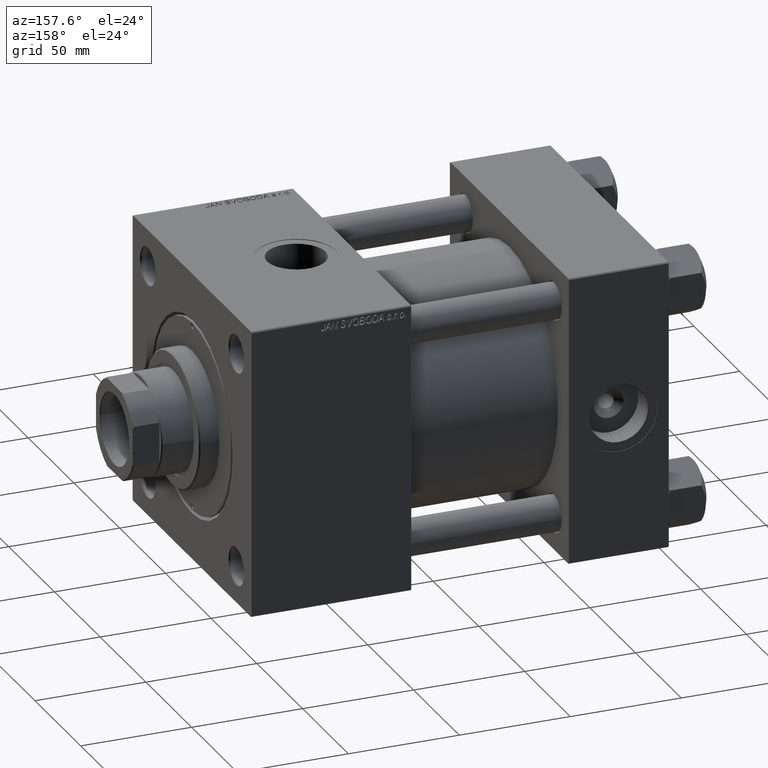
[diagram: clean part render]
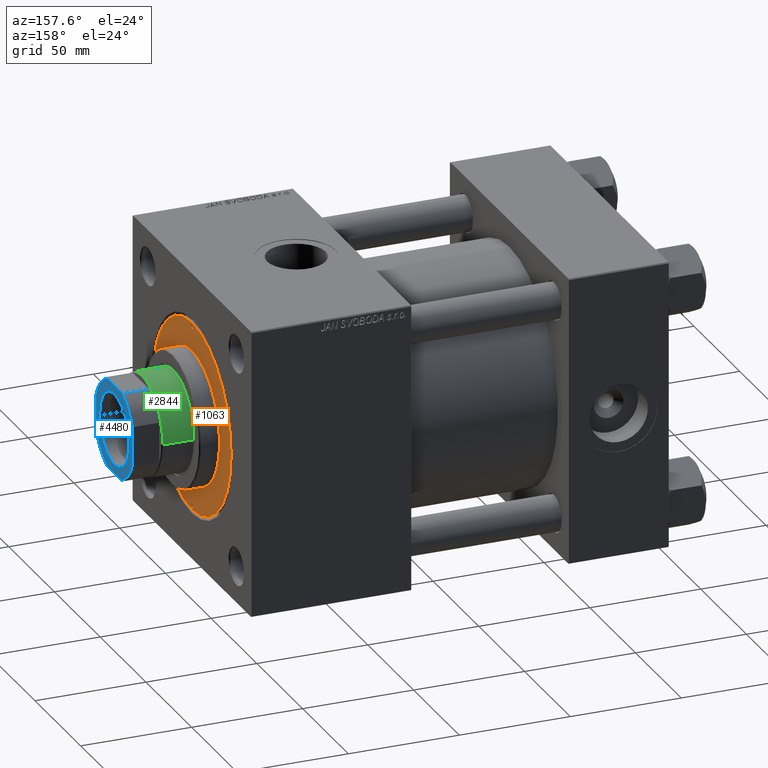
[diagram: same view with three faces highlighted in distinct colors, each labeled with its STEP entity id]
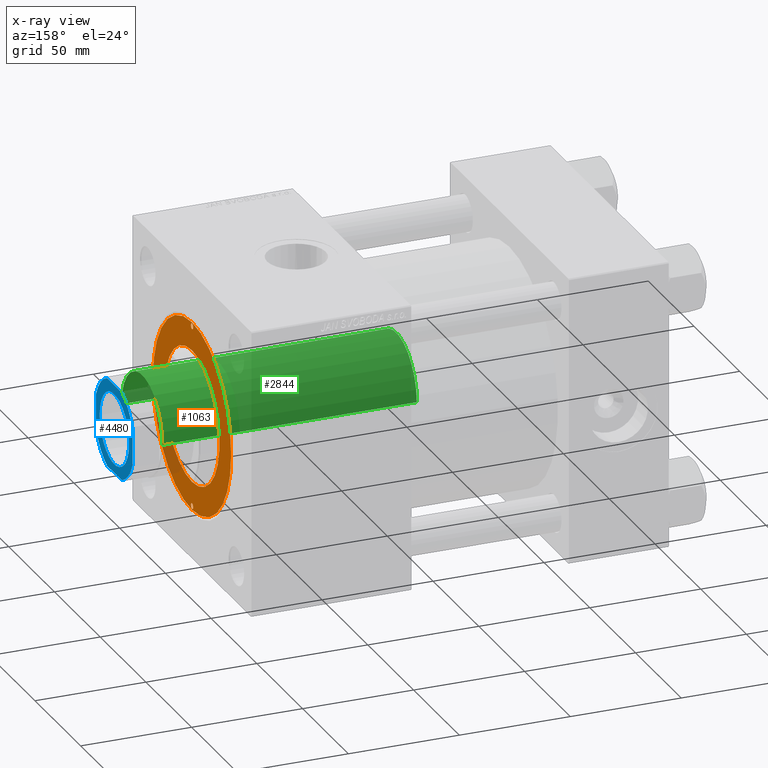
[diagram: x-ray of the same camera — body ghosted, the three highlighted faces saturated]
A machine part, auxiliary view with three faces highlighted in distinct colors.
The next image is the same camera in x-ray (body ghosted, the three faces saturated) — at least one of them is partly hidden behind the body in this view.
Their STEP definitions:

[orange] entity #1063 — the highlighted planar face has unit normal (1, 0, 0).
#275 = AXIS2_PLACEMENT_3D ( 'NONE', #12005, #31513, #8141 ) ;
#486 = AXIS2_PLACEMENT_3D ( 'NONE', #19114, #34778, #19885 ) ;
#1063 = ADVANCED_FACE ( 'NONE', ( #28494, #46998, #23892, #7962 ), #31852, .T. ) ;
#1110 = CARTESIAN_POINT ( 'NONE',  ( -41.00000000000000000, 0.000000000000000000, 28.69999999999999929 ) ) ;
#1479 = DIRECTION ( 'NONE',  ( 0.000000000000000000, 0.000000000000000000, 1.000000000000000000 ) ) ;
#1574 = ORIENTED_EDGE ( 'NONE', *, *, #43233, .F. ) ;
#2138 = EDGE_LOOP ( 'NONE', ( #1574, #11140 ) ) ;
#2294 = DIRECTION ( 'NONE',  ( 0.000000000000000000, 0.000000000000000000, 1.000000000000000000 ) ) ;
#2833 = ORIENTED_EDGE ( 'NONE', *, *, #49996, .F. ) ;
#2865 = DIRECTION ( 'NONE',  ( 1.000000000000000000, 0.000000000000000000, 0.000000000000000000 ) ) ;
#3523 = CARTESIAN_POINT ( 'NONE',  ( 0.000000000000000000, 0.000000000000000000, 28.69999999999999929 ) ) ;
#3709 = VERTEX_POINT ( 'NONE', #43168 ) ;
#3901 = CIRCLE ( 'NONE', #43242, 1.249999999999994227 ) ;
#3927 = EDGE_LOOP ( 'NONE', ( #22113, #2833 ) ) ;
#4465 = DIRECTION ( 'NONE',  ( 0.000000000000000000, 0.000000000000000000, 1.000000000000000000 ) ) ;
#4846 = DIRECTION ( 'NONE',  ( 1.000000000000000000, 0.000000000000000000, 0.000000000000000000 ) ) ;
#5575 = EDGE_CURVE ( 'NONE', #14776, #43207, #12023, .T. ) ;
#5816 = CARTESIAN_POINT ( 'NONE',  ( 42.75000000000000000, 5.235365066354935472E-15, 28.69999999999999929 ) ) ;
#7962 = FACE_OUTER_BOUND ( 'NONE', #11055, .T. ) ;
#8141 = DIRECTION ( 'NONE',  ( 1.000000000000000000, 0.000000000000000000, 0.000000000000000000 ) ) ;
#8244 = CARTESIAN_POINT ( 'NONE',  ( -39.75000000000000711, 0.000000000000000000, 28.69999999999999929 ) ) ;
#9078 = CARTESIAN_POINT ( 'NONE',  ( 0.000000000000000000, 0.000000000000000000, 28.69999999999999929 ) ) ;
#10382 = ORIENTED_EDGE ( 'NONE', *, *, #26746, .F. ) ;
#10872 = EDGE_CURVE ( 'NONE', #24531, #3709, #18749, .T. ) ;
#11055 = EDGE_LOOP ( 'NONE', ( #48394, #12604 ) ) ;
#11140 = ORIENTED_EDGE ( 'NONE', *, *, #39235, .F. ) ;
#12005 = CARTESIAN_POINT ( 'NONE',  ( 41.00000000000000000, 0.000000000000000000, 28.69999999999999929 ) ) ;
#12023 = CIRCLE ( 'NONE', #39072, 42.75000000000000000 ) ;
#12595 = DIRECTION ( 'NONE',  ( 0.000000000000000000, 0.000000000000000000, 1.000000000000000000 ) ) ;
#12604 = ORIENTED_EDGE ( 'NONE', *, *, #48836, .T. ) ;
#14530 = CARTESIAN_POINT ( 'NONE',  ( 42.24999999999999289, 0.000000000000000000, 28.69999999999999929 ) ) ;
#14776 = VERTEX_POINT ( 'NONE', #27757 ) ;
#15634 = ORIENTED_EDGE ( 'NONE', *, *, #10872, .F. ) ;
#17088 = AXIS2_PLACEMENT_3D ( 'NONE', #17152, #1479, #4846 ) ;
#17152 = CARTESIAN_POINT ( 'NONE',  ( 0.000000000000000000, 0.000000000000000000, 28.69999999999999929 ) ) ;
#17754 = CARTESIAN_POINT ( 'NONE',  ( -30.00000000000000000, 0.000000000000000000, 28.69999999999999929 ) ) ;
#18749 = CIRCLE ( 'NONE', #47456, 1.249999999999994227 ) ;
#19114 = CARTESIAN_POINT ( 'NONE',  ( -41.00000000000000000, 0.000000000000000000, 28.69999999999999929 ) ) ;
#19352 = EDGE_LOOP ( 'NONE', ( #15634, #10382 ) ) ;
#19525 = AXIS2_PLACEMENT_3D ( 'NONE', #3523, #40740, #28414 ) ;
#19885 = DIRECTION ( 'NONE',  ( 1.000000000000000000, 0.000000000000000000, 0.000000000000000000 ) ) ;
#22113 = ORIENTED_EDGE ( 'NONE', *, *, #35329, .F. ) ;
#23642 = DIRECTION ( 'NONE',  ( 1.000000000000000000, 0.000000000000000000, -0.000000000000000000 ) ) ;
#23892 = FACE_BOUND ( 'NONE', #3927, .T. ) ;
#24490 = VERTEX_POINT ( 'NONE', #49211 ) ;
#24531 = VERTEX_POINT ( 'NONE', #14530 ) ;
#26102 = CIRCLE ( 'NONE', #17088, 30.00000000000000000 ) ;
#26746 = EDGE_CURVE ( 'NONE', #3709, #24531, #49510, .T. ) ;
#27757 = CARTESIAN_POINT ( 'NONE',  ( -42.75000000000000000, 0.000000000000000000, 28.69999999999999929 ) ) ;
#28414 = DIRECTION ( 'NONE',  ( 1.000000000000000000, 0.000000000000000000, 0.000000000000000000 ) ) ;
#28494 = FACE_BOUND ( 'NONE', #2138, .T. ) ;
#29049 = CIRCLE ( 'NONE', #35613, 30.00000000000000000 ) ;
#29769 = CARTESIAN_POINT ( 'NONE',  ( 0.000000000000000000, 0.000000000000000000, 28.69999999999999929 ) ) ;
#31298 = VERTEX_POINT ( 'NONE', #40555 ) ;
#31513 = DIRECTION ( 'NONE',  ( 0.000000000000000000, 0.000000000000000000, 1.000000000000000000 ) ) ;
#31852 = PLANE ( 'NONE',  #33167 ) ;
#33167 = AXIS2_PLACEMENT_3D ( 'NONE', #44169, #12595, #23642 ) ;
#33312 = VERTEX_POINT ( 'NONE', #17754 ) ;
#34199 = DIRECTION ( 'NONE',  ( 0.000000000000000000, 0.000000000000000000, 1.000000000000000000 ) ) ;
#34778 = DIRECTION ( 'NONE',  ( 0.000000000000000000, 0.000000000000000000, 1.000000000000000000 ) ) ;
#35088 = CIRCLE ( 'NONE', #19525, 42.75000000000000000 ) ;
#35196 = VERTEX_POINT ( 'NONE', #8244 ) ;
#35329 = EDGE_CURVE ( 'NONE', #33312, #31298, #29049, .T. ) ;
#35613 = AXIS2_PLACEMENT_3D ( 'NONE', #29769, #2294, #49291 ) ;
#36052 = DIRECTION ( 'NONE',  ( 1.000000000000000000, 0.000000000000000000, 0.000000000000000000 ) ) ;
#39072 = AXIS2_PLACEMENT_3D ( 'NONE', #9078, #40651, #36052 ) ;
#39235 = EDGE_CURVE ( 'NONE', #24490, #35196, #47230, .T. ) ;
#40555 = CARTESIAN_POINT ( 'NONE',  ( 30.00000000000000000, 3.673940397442059178E-15, 28.69999999999999929 ) ) ;
#40651 = DIRECTION ( 'NONE',  ( 0.000000000000000000, 0.000000000000000000, 1.000000000000000000 ) ) ;
#40740 = DIRECTION ( 'NONE',  ( 0.000000000000000000, 0.000000000000000000, 1.000000000000000000 ) ) ;
#43168 = CARTESIAN_POINT ( 'NONE',  ( 39.75000000000000000, 1.530808498934193050E-16, 28.69999999999999929 ) ) ;
#43207 = VERTEX_POINT ( 'NONE', #5816 ) ;
#43233 = EDGE_CURVE ( 'NONE', #35196, #24490, #3901, .T. ) ;
#43242 = AXIS2_PLACEMENT_3D ( 'NONE', #1110, #4465, #47344 ) ;
#44169 = CARTESIAN_POINT ( 'NONE',  ( 0.000000000000000000, 0.000000000000000000, 28.69999999999999929 ) ) ;
#46998 = FACE_BOUND ( 'NONE', #19352, .T. ) ;
#47230 = CIRCLE ( 'NONE', #486, 1.249999999999994227 ) ;
#47344 = DIRECTION ( 'NONE',  ( 1.000000000000000000, 0.000000000000000000, 0.000000000000000000 ) ) ;
#47456 = AXIS2_PLACEMENT_3D ( 'NONE', #50640, #34199, #2865 ) ;
#48394 = ORIENTED_EDGE ( 'NONE', *, *, #5575, .T. ) ;
#48836 = EDGE_CURVE ( 'NONE', #43207, #14776, #35088, .T. ) ;
#49211 = CARTESIAN_POINT ( 'NONE',  ( -42.25000000000000000, 1.530808498934193050E-16, 28.69999999999999929 ) ) ;
#49291 = DIRECTION ( 'NONE',  ( 1.000000000000000000, 0.000000000000000000, 0.000000000000000000 ) ) ;
#49510 = CIRCLE ( 'NONE', #275, 1.249999999999994227 ) ;
#49996 = EDGE_CURVE ( 'NONE', #31298, #33312, #26102, .T. ) ;
#50640 = CARTESIAN_POINT ( 'NONE',  ( 41.00000000000000000, 0.000000000000000000, 28.69999999999999929 ) ) ;

[blue] entity #4480 — the highlighted planar face has unit normal (1, 0, 0).
#40 = DIRECTION ( 'NONE',  ( 1.000000000000000000, 0.000000000000000000, 0.000000000000000000 ) ) ;
#1657 = PLANE ( 'NONE',  #45574 ) ;
#2050 = CARTESIAN_POINT ( 'NONE',  ( -20.00000000000000355, 20.00000000000000000, 178.0000000000000284 ) ) ;
#2095 = VECTOR ( 'NONE', #27193, 1000.000000000000000 ) ;
#3887 = CARTESIAN_POINT ( 'NONE',  ( 0.000000000000000000, 0.000000000000000000, 178.0000000000000284 ) ) ;
#3936 = VECTOR ( 'NONE', #28221, 1000.000000000000000 ) ;
#4480 = ADVANCED_FACE ( 'NONE', ( #25039, #44306 ), #1657, .T. ) ;
#4760 = ORIENTED_EDGE ( 'NONE', *, *, #38626, .T. ) ;
#4894 = ORIENTED_EDGE ( 'NONE', *, *, #17705, .T. ) ;
#5862 = VERTEX_POINT ( 'NONE', #9793 ) ;
#5957 = CARTESIAN_POINT ( 'NONE',  ( 0.000000000000000000, 0.000000000000000000, 178.0000000000000284 ) ) ;
#7340 = AXIS2_PLACEMENT_3D ( 'NONE', #5957, #18029, #33695 ) ;
#7610 = EDGE_CURVE ( 'NONE', #29612, #5862, #28272, .T. ) ;
#8500 = CARTESIAN_POINT ( 'NONE',  ( 0.000000000000000000, 0.000000000000000000, 178.0000000000000284 ) ) ;
#8812 = CARTESIAN_POINT ( 'NONE',  ( 20.00000000000000000, 7.889866919029785208, 178.0000000000000284 ) ) ;
#9745 = CARTESIAN_POINT ( 'NONE',  ( 19.99999999999999645, 20.00000000000000000, 178.0000000000000284 ) ) ;
#9793 = CARTESIAN_POINT ( 'NONE',  ( -20.00000000000000000, -7.889866919029748793, 178.0000000000000284 ) ) ;
#9897 = DIRECTION ( 'NONE',  ( 1.000000000000000000, 0.000000000000000000, 0.000000000000000000 ) ) ;
#10201 = VERTEX_POINT ( 'NONE', #13026 ) ;
#10950 = VECTOR ( 'NONE', #37743, 1000.000000000000000 ) ;
#10995 = CARTESIAN_POINT ( 'NONE',  ( -7.889866919029745240, -20.00000000000000000, 178.0000000000000284 ) ) ;
#13026 = CARTESIAN_POINT ( 'NONE',  ( 16.05000000000000782, 0.000000000000000000, 178.0000000000000284 ) ) ;
#14941 = ORIENTED_EDGE ( 'NONE', *, *, #21303, .T. ) ;
#15419 = ORIENTED_EDGE ( 'NONE', *, *, #49764, .T. ) ;
#16488 = VERTEX_POINT ( 'NONE', #26853 ) ;
#17313 = ORIENTED_EDGE ( 'NONE', *, *, #48491, .T. ) ;
#17326 = VERTEX_POINT ( 'NONE', #34895 ) ;
#17705 = EDGE_CURVE ( 'NONE', #16488, #10201, #37698, .T. ) ;
#18029 = DIRECTION ( 'NONE',  ( 0.000000000000000000, -0.000000000000000000, -1.000000000000000000 ) ) ;
#18674 = VERTEX_POINT ( 'NONE', #34325 ) ;
#19558 = DIRECTION ( 'NONE',  ( -0.000000000000000000, 0.000000000000000000, 1.000000000000000000 ) ) ;
#19565 = DIRECTION ( 'NONE',  ( 1.000000000000000000, 0.000000000000000000, 0.000000000000000000 ) ) ;
#19585 = DIRECTION ( 'NONE',  ( -0.000000000000000000, 0.000000000000000000, 1.000000000000000000 ) ) ;
#20139 = CARTESIAN_POINT ( 'NONE',  ( 0.000000000000000000, 0.000000000000000000, 178.0000000000000284 ) ) ;
#20403 = DIRECTION ( 'NONE',  ( 1.000000000000000000, 0.000000000000000000, 0.000000000000000000 ) ) ;
#20412 = AXIS2_PLACEMENT_3D ( 'NONE', #3887, #35473, #19565 ) ;
#20596 = CARTESIAN_POINT ( 'NONE',  ( -20.00000000000000355, 20.00000000000000000, 178.0000000000000284 ) ) ;
#21045 = LINE ( 'NONE', #9745, #3936 ) ;
#21303 = EDGE_CURVE ( 'NONE', #10201, #16488, #50130, .T. ) ;
#21627 = VERTEX_POINT ( 'NONE', #30560 ) ;
#21655 = AXIS2_PLACEMENT_3D ( 'NONE', #31748, #35597, #43564 ) ;
#23431 = CARTESIAN_POINT ( 'NONE',  ( 0.000000000000000000, 0.000000000000000000, 178.0000000000000284 ) ) ;
#24109 = LINE ( 'NONE', #43630, #2095 ) ;
#25039 = FACE_BOUND ( 'NONE', #38710, .T. ) ;
#25210 = VECTOR ( 'NONE', #48049, 1000.000000000000000 ) ;
#25306 = CIRCLE ( 'NONE', #20412, 21.49999999999996447 ) ;
#26853 = CARTESIAN_POINT ( 'NONE',  ( -16.05000000000000782, 1.965558112631502993E-15, 178.0000000000000284 ) ) ;
#27193 = DIRECTION ( 'NONE',  ( 1.000000000000000000, 0.000000000000000000, 0.000000000000000000 ) ) ;
#27984 = AXIS2_PLACEMENT_3D ( 'NONE', #20139, #50706, #20403 ) ;
#28221 = DIRECTION ( 'NONE',  ( -1.734723475976807094E-16, 1.000000000000000000, -0.000000000000000000 ) ) ;
#28272 = LINE ( 'NONE', #20596, #25210 ) ;
#28794 = VERTEX_POINT ( 'NONE', #34385 ) ;
#29392 = DIRECTION ( 'NONE',  ( -0.000000000000000000, 0.000000000000000000, 1.000000000000000000 ) ) ;
#29539 = EDGE_CURVE ( 'NONE', #18674, #17326, #45198, .T. ) ;
#29612 = VERTEX_POINT ( 'NONE', #39516 ) ;
#30092 = EDGE_CURVE ( 'NONE', #17326, #29612, #36403, .T. ) ;
#30560 = CARTESIAN_POINT ( 'NONE',  ( 20.00000000000000000, -7.889866919029643100, 178.0000000000000284 ) ) ;
#30948 = ORIENTED_EDGE ( 'NONE', *, *, #7610, .T. ) ;
#31748 = CARTESIAN_POINT ( 'NONE',  ( 0.000000000000000000, 0.000000000000000000, 178.0000000000000284 ) ) ;
#33695 = DIRECTION ( 'NONE',  ( 1.000000000000000000, 0.000000000000000000, 0.000000000000000000 ) ) ;
#34325 = CARTESIAN_POINT ( 'NONE',  ( 7.889866919029781656, 20.00000000000000000, 178.0000000000000284 ) ) ;
#34385 = CARTESIAN_POINT ( 'NONE',  ( 7.889866919029648429, -20.00000000000000000, 178.0000000000000284 ) ) ;
#34895 = CARTESIAN_POINT ( 'NONE',  ( -7.889866919029755898, 20.00000000000000000, 178.0000000000000284 ) ) ;
#35112 = EDGE_CURVE ( 'NONE', #45467, #18674, #39720, .T. ) ;
#35264 = ORIENTED_EDGE ( 'NONE', *, *, #39558, .T. ) ;
#35473 = DIRECTION ( 'NONE',  ( -0.000000000000000000, 0.000000000000000000, 1.000000000000000000 ) ) ;
#35597 = DIRECTION ( 'NONE',  ( -0.000000000000000000, 0.000000000000000000, 1.000000000000000000 ) ) ;
#36351 = CARTESIAN_POINT ( 'NONE',  ( 0.000000000000000000, 0.000000000000000000, 178.0000000000000284 ) ) ;
#36403 = CIRCLE ( 'NONE', #21655, 21.50000000000000000 ) ;
#36430 = AXIS2_PLACEMENT_3D ( 'NONE', #8500, #19558, #38811 ) ;
#37085 = ORIENTED_EDGE ( 'NONE', *, *, #30092, .T. ) ;
#37404 = CIRCLE ( 'NONE', #48046, 21.50000000000000000 ) ;
#37698 = CIRCLE ( 'NONE', #7340, 16.05000000000000782 ) ;
#37743 = DIRECTION ( 'NONE',  ( -1.000000000000000000, -0.000000000000000000, -0.000000000000000000 ) ) ;
#38626 = EDGE_CURVE ( 'NONE', #42190, #28794, #24109, .T. ) ;
#38710 = EDGE_LOOP ( 'NONE', ( #14941, #4894 ) ) ;
#38811 = DIRECTION ( 'NONE',  ( 1.000000000000000000, 0.000000000000000000, 0.000000000000000000 ) ) ;
#39516 = CARTESIAN_POINT ( 'NONE',  ( -20.00000000000000000, 7.889866919029752346, 178.0000000000000284 ) ) ;
#39558 = EDGE_CURVE ( 'NONE', #5862, #42190, #37404, .T. ) ;
#39720 = CIRCLE ( 'NONE', #36430, 21.50000000000001066 ) ;
#42190 = VERTEX_POINT ( 'NONE', #10995 ) ;
#43564 = DIRECTION ( 'NONE',  ( 1.000000000000000000, 0.000000000000000000, 0.000000000000000000 ) ) ;
#43630 = CARTESIAN_POINT ( 'NONE',  ( -19.99999999999999645, -20.00000000000000000, 178.0000000000000284 ) ) ;
#44306 = FACE_OUTER_BOUND ( 'NONE', #48338, .T. ) ;
#44927 = ORIENTED_EDGE ( 'NONE', *, *, #35112, .T. ) ;
#45198 = LINE ( 'NONE', #2050, #10950 ) ;
#45467 = VERTEX_POINT ( 'NONE', #8812 ) ;
#45574 = AXIS2_PLACEMENT_3D ( 'NONE', #36351, #29392, #9897 ) ;
#46091 = ORIENTED_EDGE ( 'NONE', *, *, #29539, .T. ) ;
#48046 = AXIS2_PLACEMENT_3D ( 'NONE', #23431, #19585, #40 ) ;
#48049 = DIRECTION ( 'NONE',  ( 1.734723475976807094E-16, -1.000000000000000000, 0.000000000000000000 ) ) ;
#48338 = EDGE_LOOP ( 'NONE', ( #17313, #44927, #46091, #37085, #30948, #35264, #4760, #15419 ) ) ;
#48491 = EDGE_CURVE ( 'NONE', #21627, #45467, #21045, .T. ) ;
#49764 = EDGE_CURVE ( 'NONE', #28794, #21627, #25306, .T. ) ;
#50130 = CIRCLE ( 'NONE', #27984, 16.05000000000000782 ) ;
#50706 = DIRECTION ( 'NONE',  ( 0.000000000000000000, -0.000000000000000000, -1.000000000000000000 ) ) ;

[green] entity #2844 — the highlighted cylindrical surface (partial cylindrical patch) has radius 22.5 mm, axis along (-1, 0, 0).
#250 = FACE_OUTER_BOUND ( 'NONE', #47010, .T. ) ;
#949 = CARTESIAN_POINT ( 'NONE',  ( 0.000000000000000000, 0.000000000000000000, 51.00000000000000000 ) ) ;
#1643 = LINE ( 'NONE', #40440, #39490 ) ;
#2753 = VECTOR ( 'NONE', #20123, 1000.000000000000000 ) ;
#2844 = ADVANCED_FACE ( 'NONE', ( #250 ), #15682, .T. ) ;
#4449 = LINE ( 'NONE', #22951, #2753 ) ;
#4806 = CARTESIAN_POINT ( 'NONE',  ( -22.50000000000000355, 0.000000000000000000, 51.00000000000000000 ) ) ;
#5251 = DIRECTION ( 'NONE',  ( -0.000000000000000000, -0.000000000000000000, -1.000000000000000000 ) ) ;
#6068 = ORIENTED_EDGE ( 'NONE', *, *, #35853, .T. ) ;
#7858 = CARTESIAN_POINT ( 'NONE',  ( -22.50000000000000355, 0.000000000000000000, 165.4999999999999716 ) ) ;
#8701 = DIRECTION ( 'NONE',  ( 1.000000000000000000, 0.000000000000000000, 0.000000000000000000 ) ) ;
#10579 = ORIENTED_EDGE ( 'NONE', *, *, #24896, .F. ) ;
#11101 = AXIS2_PLACEMENT_3D ( 'NONE', #11588, #47761, #50855 ) ;
#11147 = VERTEX_POINT ( 'NONE', #45203 ) ;
#11588 = CARTESIAN_POINT ( 'NONE',  ( 0.000000000000000000, 0.000000000000000000, 166.0000000000000000 ) ) ;
#11880 = AXIS2_PLACEMENT_3D ( 'NONE', #949, #44598, #16614 ) ;
#12566 = CARTESIAN_POINT ( 'NONE',  ( 0.000000000000000000, 0.000000000000000000, 165.4999999999999716 ) ) ;
#13036 = ORIENTED_EDGE ( 'NONE', *, *, #33885, .T. ) ;
#13293 = AXIS2_PLACEMENT_3D ( 'NONE', #12566, #43883, #8701 ) ;
#13483 = VERTEX_POINT ( 'NONE', #4806 ) ;
#15682 = CYLINDRICAL_SURFACE ( 'NONE', #11101, 22.50000000000000355 ) ;
#15741 = CIRCLE ( 'NONE', #13293, 22.50000000000000355 ) ;
#16123 = VERTEX_POINT ( 'NONE', #7858 ) ;
#16614 = DIRECTION ( 'NONE',  ( 1.000000000000000000, 0.000000000000000000, 0.000000000000000000 ) ) ;
#20123 = DIRECTION ( 'NONE',  ( -0.000000000000000000, -0.000000000000000000, -1.000000000000000000 ) ) ;
#21797 = ORIENTED_EDGE ( 'NONE', *, *, #25814, .T. ) ;
#22951 = CARTESIAN_POINT ( 'NONE',  ( -22.50000000000000355, 0.000000000000000000, 166.0000000000000000 ) ) ;
#24896 = EDGE_CURVE ( 'NONE', #11147, #39409, #1643, .T. ) ;
#25814 = EDGE_CURVE ( 'NONE', #11147, #16123, #15741, .T. ) ;
#33885 = EDGE_CURVE ( 'NONE', #16123, #13483, #4449, .T. ) ;
#35853 = EDGE_CURVE ( 'NONE', #13483, #39409, #49573, .T. ) ;
#37055 = CARTESIAN_POINT ( 'NONE',  ( 22.50000000000000355, 2.755455298081545172E-15, 51.00000000000000000 ) ) ;
#39409 = VERTEX_POINT ( 'NONE', #37055 ) ;
#39490 = VECTOR ( 'NONE', #5251, 1000.000000000000000 ) ;
#40440 = CARTESIAN_POINT ( 'NONE',  ( 22.50000000000000355, 2.755455298081545172E-15, 166.0000000000000000 ) ) ;
#43883 = DIRECTION ( 'NONE',  ( 0.000000000000000000, 0.000000000000000000, -1.000000000000000000 ) ) ;
#44598 = DIRECTION ( 'NONE',  ( 0.000000000000000000, 0.000000000000000000, 1.000000000000000000 ) ) ;
#45203 = CARTESIAN_POINT ( 'NONE',  ( 22.50000000000000355, 2.755455298081545172E-15, 165.4999999999999716 ) ) ;
#47010 = EDGE_LOOP ( 'NONE', ( #10579, #21797, #13036, #6068 ) ) ;
#47761 = DIRECTION ( 'NONE',  ( -0.000000000000000000, -0.000000000000000000, -1.000000000000000000 ) ) ;
#49573 = CIRCLE ( 'NONE', #11880, 22.50000000000000355 ) ;
#50855 = DIRECTION ( 'NONE',  ( -1.000000000000000000, 0.000000000000000000, 0.000000000000000000 ) ) ;